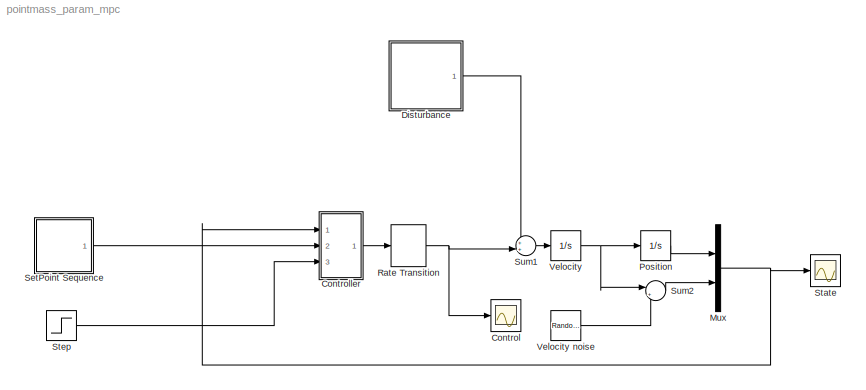
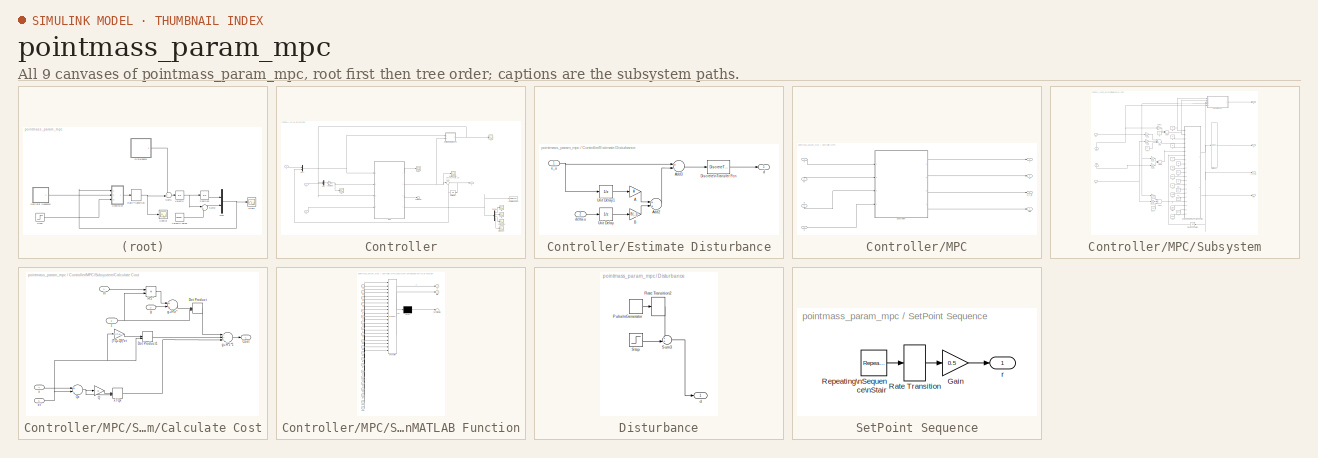
[diagram: thumbnail index - all 9 canvases of the model, root first then tree order]
MODEL pointmass_param_mpc
KIND model
BLOCK [Scope] Control
  DataFormat = StructureWithTime
  Floating = off
  NumInputPorts = 1
  Ports = [1]
  SID = 8
  SampleTime = 0
  SaveName = ScopeData1
  ShowLegends = off
  TimeRange = 240
  YMax = 0.35
  YMin = -0.4
BLOCK [SubSystem] Controller
  Ports = [3, 1]
  RequestExecContextInheritance = off
  SID = 410
  SystemSampleTime = dt
  TreatAsAtomicUnit = on
BLOCK [Demux] Controller/Demux
  DisplayOption = bar
  Ports = [1, 4]
  SID = 416
BLOCK [SubSystem] Controller/Estimate Disturbance
  Ports = [2, 1]
  RequestExecContextInheritance = off
  SID = 417
BLOCK [Gain] Controller/Estimate Disturbance/A
  Gain = A
  Multiplication = Matrix(K*u)
  OutDataTypeStr = Inherit: Inherit via internal rule
  ParamDataTypeStr = Inherit: Inherit via internal rule
  SID = 420
  SaturateOnIntegerOverflow = off
BLOCK [Sum] Controller/Estimate Disturbance/Add2
  InputSameDT = off
  OutDataTypeStr = Inherit: Inherit via internal rule
  Ports = [2, 1]
  SID = 421
  SaturateOnIntegerOverflow = off
BLOCK [Sum] Controller/Estimate Disturbance/Add3
  InputSameDT = off
  Inputs = +-
  OutDataTypeStr = Inherit: Inherit via internal rule
  Ports = [2, 1]
  SID = 422
  SaturateOnIntegerOverflow = off
BLOCK [Gain] Controller/Estimate Disturbance/B
  Gain = B(:,1)
  Multiplication = Matrix(K*u)
  OutDataTypeStr = Inherit: Inherit via internal rule
  ParamDataTypeStr = Inherit: Inherit via internal rule
  SID = 423
  SaturateOnIntegerOverflow = off
BLOCK [DiscreteTransferFcn] Controller/Estimate Disturbance/Discrete\nTransfer Fcn
  Denominator = [1 -0.5]
  InputPortMap = u0
  Numerator = [0.5]
  Ports = [1, 1]
  SID = 424
BLOCK [UnitDelay] Controller/Estimate Disturbance/Unit Delay
  InputProcessing = Elements as channels (sample based)
  SID = 425
  SampleTime = -1
BLOCK [UnitDelay] Controller/Estimate Disturbance/Unit Delay1
  InputProcessing = Elements as channels (sample based)
  SID = 426
  SampleTime = -1
BLOCK [Outport] Controller/Estimate Disturbance/d
  IconDisplay = Port number
  SID = 427
BLOCK [Inport] Controller/Estimate Disturbance/delta-u
  IconDisplay = Port number
  Port = 2
  SID = 419
BLOCK [Inport] Controller/Estimate Disturbance/x_u
  IconDisplay = Port number
  SID = 418
BLOCK [SubSystem] Controller/MPC
  Ports = [4, 4]
  RequestExecContextInheritance = off
  SID = 429
  TreatAsAtomicUnit = on
BLOCK [Outport] Controller/MPC/J
  IconDisplay = Port number
  SID = 483
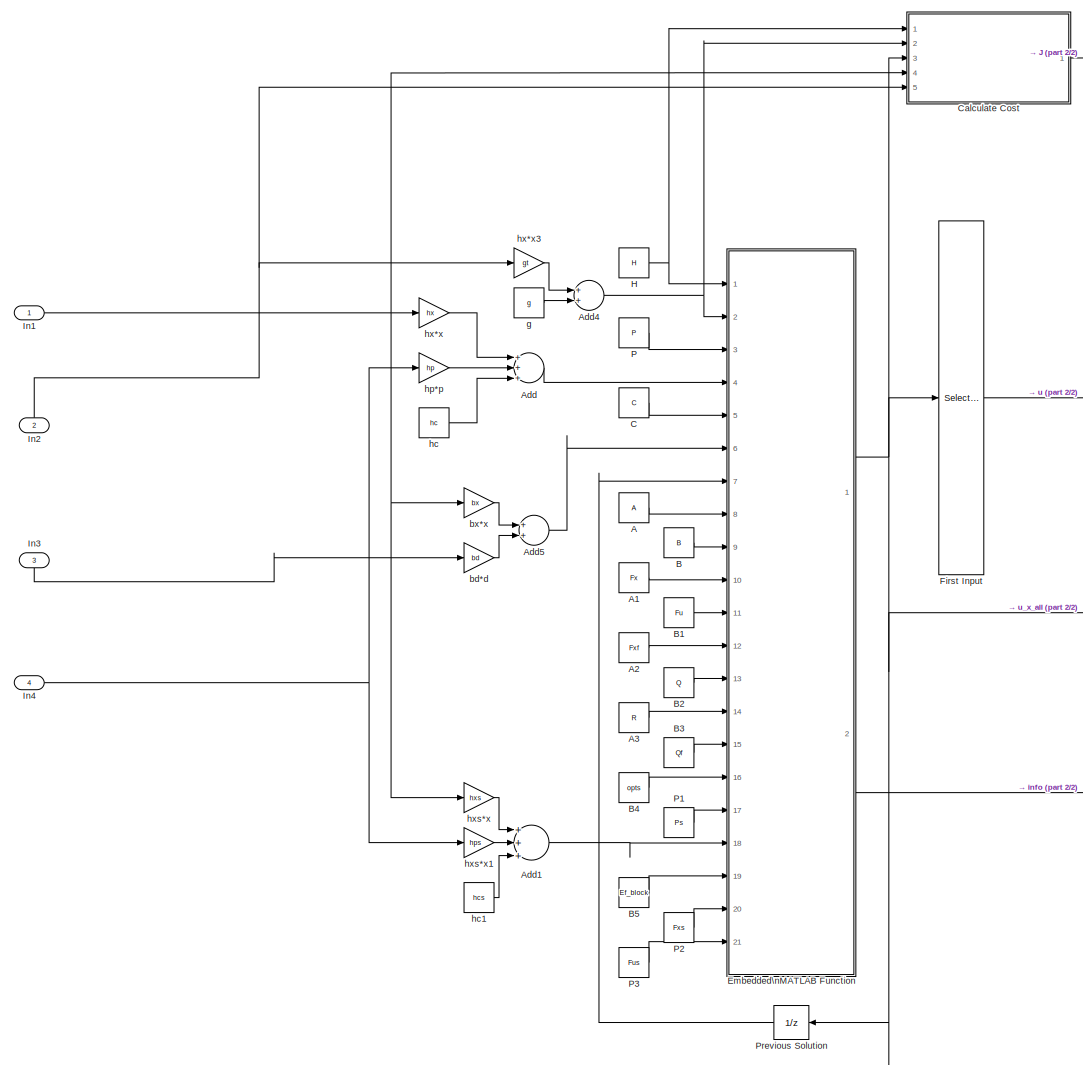
[diagram: Controller/MPC/Subsystem - part 1/2, most of the canvas]
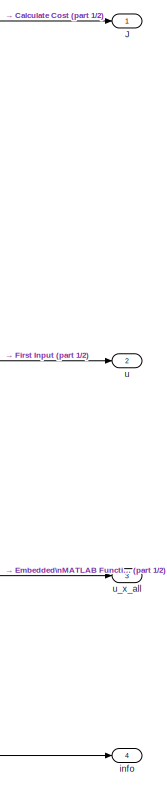
[diagram: Controller/MPC/Subsystem - part 2/2, middle right region]
BLOCK [SubSystem] Controller/MPC/Subsystem
  Ports = [4, 4]
  RequestExecContextInheritance = off
  SID = 498
  SystemSampleTime = dt
  TreatAsAtomicUnit = on
BLOCK [Constant] Controller/MPC/Subsystem/A
  SID = 434
  Value = A
BLOCK [Constant] Controller/MPC/Subsystem/A1
  SID = 435
  Value = Fx
BLOCK [Constant] Controller/MPC/Subsystem/A2
  SID = 436
  Value = Fxf
BLOCK [Constant] Controller/MPC/Subsystem/A3
  SID = 437
  Value = R
BLOCK [Sum] Controller/MPC/Subsystem/Add
  InputSameDT = off
  Inputs = +++
  OutDataTypeStr = Inherit: Inherit via internal rule
  Ports = [3, 1]
  SID = 438
  SaturateOnIntegerOverflow = off
BLOCK [Sum] Controller/MPC/Subsystem/Add1
  InputSameDT = off
  Inputs = +++
  OutDataTypeStr = Inherit: Inherit via internal rule
  Ports = [3, 1]
  SID = 439
  SaturateOnIntegerOverflow = off
BLOCK [Sum] Controller/MPC/Subsystem/Add4
  InputSameDT = off
  OutDataTypeStr = Inherit: Inherit via internal rule
  Ports = [2, 1]
  SID = 440
  SaturateOnIntegerOverflow = off
BLOCK [Sum] Controller/MPC/Subsystem/Add5
  InputSameDT = off
  OutDataTypeStr = Inherit: Inherit via internal rule
  Ports = [2, 1]
  SID = 441
  SaturateOnIntegerOverflow = off
BLOCK [Constant] Controller/MPC/Subsystem/B
  SID = 442
  Value = B
BLOCK [Constant] Controller/MPC/Subsystem/B1
  SID = 443
  Value = Fu
BLOCK [Constant] Controller/MPC/Subsystem/B2
  SID = 444
  Value = Q
BLOCK [Constant] Controller/MPC/Subsystem/B3
  SID = 445
  Value = Qf
BLOCK [Constant] Controller/MPC/Subsystem/B4
  SID = 446
  Value = opts
BLOCK [Constant] Controller/MPC/Subsystem/B5
  SID = 447
  Value = Ef_block
BLOCK [Constant] Controller/MPC/Subsystem/C
  SID = 448
  Value = C
BLOCK [SubSystem] Controller/MPC/Subsystem/Calculate Cost
  Ports = [5, 1]
  RequestExecContextInheritance = off
  SID = 449
BLOCK [Gain] Controller/MPC/Subsystem/Calculate Cost/(TQ+Qf)*xt
  Gain = Q*(T-1)+Qf
  Multiplication = Matrix(K*u)
  OutDataTypeStr = Inherit: Inherit via internal rule
  ParamDataTypeStr = Inherit: Inherit via internal rule
  SID = 455
  SaturateOnIntegerOverflow = off
BLOCK [Outport] Controller/MPC/Subsystem/Calculate Cost/Cost
  IconDisplay = Port number
  SID = 464
BLOCK [DotProduct] Controller/MPC/Subsystem/Calculate Cost/Dot Product
  OutDataTypeStr = Inherit: Inherit via internal rule
  SID = 456
BLOCK [DotProduct] Controller/MPC/Subsystem/Calculate Cost/Dot Product1
  OutDataTypeStr = Inherit: Inherit via internal rule
  SID = 457
BLOCK [Inport] Controller/MPC/Subsystem/Calculate Cost/H
  IconDisplay = Port number
  SID = 450
BLOCK [Product] Controller/MPC/Subsystem/Calculate Cost/H*z*
  InputSameDT = off
  Multiplication = Matrix(*)
  OutDataTypeStr = Inherit: Inherit via internal rule
  Ports = [2, 1]
  SID = 458
  SaturateOnIntegerOverflow = off
BLOCK [Gain] Controller/MPC/Subsystem/Calculate Cost/Q
  Gain = Q
  Multiplication = Matrix(K*u)
  OutDataTypeStr = Inherit: Inherit via internal rule
  ParamDataTypeStr = Inherit: Inherit via internal rule
  SID = 459
  SaturateOnIntegerOverflow = off
BLOCK [Sum] Controller/MPC/Subsystem/Calculate Cost/Qx
  InputSameDT = off
  Inputs = +-
  OutDataTypeStr = Inherit: Inherit via internal rule
  Ports = [2, 1]
  SID = 460
  SaturateOnIntegerOverflow = off
BLOCK [Inport] Controller/MPC/Subsystem/Calculate Cost/g
  IconDisplay = Port number
  Port = 2
  SID = 451
BLOCK [Sum] Controller/MPC/Subsystem/Calculate Cost/g+H*z*
  InputSameDT = off
  OutDataTypeStr = Inherit: Inherit via internal rule
  Ports = [2, 1]
  SID = 461
  SaturateOnIntegerOverflow = off
BLOCK [Sum] Controller/MPC/Subsystem/Calculate Cost/g+H*z*1
  InputSameDT = off
  Inputs = +++
  OutDataTypeStr = Inherit: Inherit via internal rule
  Ports = [3, 1]
  SID = 462
  SaturateOnIntegerOverflow = off
BLOCK [Inport] Controller/MPC/Subsystem/Calculate Cost/x
  IconDisplay = Port number
  Port = 4
  SID = 453
BLOCK [DotProduct] Controller/MPC/Subsystem/Calculate Cost/xTQx
  OutDataTypeStr = Inherit: Inherit via internal rule
  SID = 463
BLOCK [Inport] Controller/MPC/Subsystem/Calculate Cost/xt
  IconDisplay = Port number
  Port = 5
  SID = 454
BLOCK [Inport] Controller/MPC/Subsystem/Calculate Cost/z
  IconDisplay = Port number
  Port = 3
  SID = 452
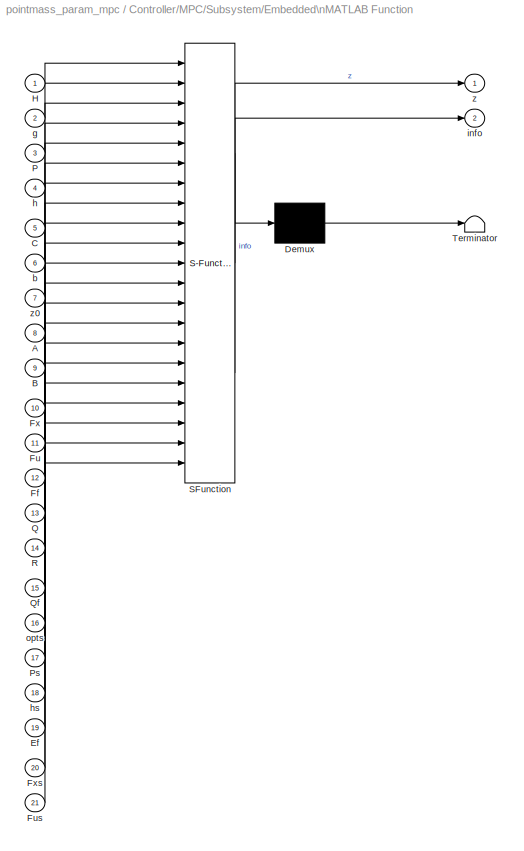
BLOCK [SubSystem] Controller/MPC/Subsystem/Embedded\nMATLAB Function
  ErrorFcn = Stateflow.Translate.translate
  PermitHierarchicalResolution = ExplicitOnly
  Ports = [21, 2]
  RTWFileNameOpts = Use subsystem name
  RequestExecContextInheritance = off
  SFBlockType = MATLAB Function
  SID = 465
  TreatAsAtomicUnit = on
BLOCK [Demux] Controller/MPC/Subsystem/Embedded\nMATLAB Function/ Demux 
  Outputs = 1
  Ports = [1, 1]
  SID = 465::40
BLOCK [S-Function] Controller/MPC/Subsystem/Embedded\nMATLAB Function/ SFunction 
  EnableBusSupport = on
  FunctionName = sf_sfun
  PortCounts = [21 3]
  Ports = [21, 3]
  SID = 465::39
  Tag = Stateflow S-Function pointmass_param_mpc 1
BLOCK [Terminator] Controller/MPC/Subsystem/Embedded\nMATLAB Function/ Terminator 
  SID = 465::41
BLOCK [Inport] Controller/MPC/Subsystem/Embedded\nMATLAB Function/A
  IconDisplay = Port number
  Port = 8
  SID = 465::17
BLOCK [Inport] Controller/MPC/Subsystem/Embedded\nMATLAB Function/B
  IconDisplay = Port number
  Port = 9
  SID = 465::22
BLOCK [Inport] Controller/MPC/Subsystem/Embedded\nMATLAB Function/C
  IconDisplay = Port number
  Port = 5
  SID = 465::13
BLOCK [Inport] Controller/MPC/Subsystem/Embedded\nMATLAB Function/Ef
  IconDisplay = Port number
  Port = 19
  SID = 465::33
BLOCK [Inport] Controller/MPC/Subsystem/Embedded\nMATLAB Function/Ff
  IconDisplay = Port number
  Port = 12
  SID = 465::25
BLOCK [Inport] Controller/MPC/Subsystem/Embedded\nMATLAB Function/Fu
  IconDisplay = Port number
  Port = 11
  SID = 465::24
BLOCK [Inport] Controller/MPC/Subsystem/Embedded\nMATLAB Function/Fus
  IconDisplay = Port number
  Port = 21
  SID = 465::38
BLOCK [Inport] Controller/MPC/Subsystem/Embedded\nMATLAB Function/Fx
  IconDisplay = Port number
  Port = 10
  SID = 465::23
BLOCK [Inport] Controller/MPC/Subsystem/Embedded\nMATLAB Function/Fxs
  IconDisplay = Port number
  Port = 20
  SID = 465::34
BLOCK [Inport] Controller/MPC/Subsystem/Embedded\nMATLAB Function/H
  IconDisplay = Port number
  SID = 465::1
BLOCK [Inport] Controller/MPC/Subsystem/Embedded\nMATLAB Function/P
  IconDisplay = Port number
  Port = 3
  SID = 465::11
BLOCK [Inport] Controller/MPC/Subsystem/Embedded\nMATLAB Function/Ps
  IconDisplay = Port number
  Port = 17
  SID = 465::31
BLOCK [Inport] Controller/MPC/Subsystem/Embedded\nMATLAB Function/Q
  IconDisplay = Port number
  Port = 13
  SID = 465::26
BLOCK [Inport] Controller/MPC/Subsystem/Embedded\nMATLAB Function/Qf
  IconDisplay = Port number
  Port = 15
  SID = 465::28
BLOCK [Inport] Controller/MPC/Subsystem/Embedded\nMATLAB Function/R
  IconDisplay = Port number
  Port = 14
  SID = 465::27
BLOCK [Inport] Controller/MPC/Subsystem/Embedded\nMATLAB Function/b
  IconDisplay = Port number
  Port = 6
  SID = 465::14
BLOCK [Inport] Controller/MPC/Subsystem/Embedded\nMATLAB Function/g
  IconDisplay = Port number
  Port = 2
  SID = 465::10
BLOCK [Inport] Controller/MPC/Subsystem/Embedded\nMATLAB Function/h
  IconDisplay = Port number
  Port = 4
  SID = 465::12
BLOCK [Inport] Controller/MPC/Subsystem/Embedded\nMATLAB Function/hs
  IconDisplay = Port number
  Port = 18
  SID = 465::32
BLOCK [Outport] Controller/MPC/Subsystem/Embedded\nMATLAB Function/info
  IconDisplay = Port number
  Port = 2
  SID = 465::29
BLOCK [Inport] Controller/MPC/Subsystem/Embedded\nMATLAB Function/opts
  IconDisplay = Port number
  Port = 16
  SID = 465::30
BLOCK [Outport] Controller/MPC/Subsystem/Embedded\nMATLAB Function/z
  IconDisplay = Port number
  SID = 465::5
BLOCK [Inport] Controller/MPC/Subsystem/Embedded\nMATLAB Function/z0
  IconDisplay = Port number
  Port = 7
  SID = 465::15
BLOCK [Selector] Controller/MPC/Subsystem/First Input
  Indices = 1:size(B,2)
  InputPortWidth = size(H,1)
  Ports = [1, 1]
  SID = 466
BLOCK [Constant] Controller/MPC/Subsystem/H
  SID = 467
  Value = H
BLOCK [Inport] Controller/MPC/Subsystem/In1
  IconDisplay = Port number
  SID = 499
BLOCK [Inport] Controller/MPC/Subsystem/In2
  IconDisplay = Port number
  Port = 2
  SID = 500
BLOCK [Inport] Controller/MPC/Subsystem/In3
  IconDisplay = Port number
  Port = 3
  SID = 501
BLOCK [Inport] Controller/MPC/Subsystem/In4
  IconDisplay = Port number
  Port = 4
  SID = 502
BLOCK [Outport] Controller/MPC/Subsystem/J
  IconDisplay = Port number
  SID = 503
BLOCK [Constant] Controller/MPC/Subsystem/P
  SID = 468
  Value = P
BLOCK [Constant] Controller/MPC/Subsystem/P1
  SID = 469
  Value = Ps
BLOCK [Constant] Controller/MPC/Subsystem/P2
  SID = 470
  Value = Fxs
BLOCK [Constant] Controller/MPC/Subsystem/P3
  SID = 471
  Value = Fus
BLOCK [UnitDelay] Controller/MPC/Subsystem/Previous Solution
  SID = 472
  SampleTime = -1
BLOCK [Gain] Controller/MPC/Subsystem/bd*d
  Gain = bd
  Multiplication = Matrix(K*u)
  OutDataTypeStr = Inherit: Inherit via internal rule
  ParamDataTypeStr = Inherit: Inherit via internal rule
  SID = 473
  SaturateOnIntegerOverflow = off
BLOCK [Gain] Controller/MPC/Subsystem/bx*x
  Gain = bx
  Multiplication = Matrix(K*u)
  OutDataTypeStr = Inherit: Inherit via internal rule
  ParamDataTypeStr = Inherit: Inherit via internal rule
  SID = 474
  SaturateOnIntegerOverflow = off
BLOCK [Constant] Controller/MPC/Subsystem/g
  SID = 475
  Value = g
BLOCK [Constant] Controller/MPC/Subsystem/hc
  SID = 476
  Value = hc
BLOCK [Constant] Controller/MPC/Subsystem/hc1
  SID = 477
  Value = hcs
BLOCK [Gain] Controller/MPC/Subsystem/hp*p
  Gain = hp
  Multiplication = Matrix(K*u)
  OutDataTypeStr = Inherit: Inherit via internal rule
  ParamDataTypeStr = Inherit: Inherit via internal rule
  SID = 478
  SaturateOnIntegerOverflow = off
BLOCK [Gain] Controller/MPC/Subsystem/hx*x
  Gain = hx
  Multiplication = Matrix(K*u)
  OutDataTypeStr = Inherit: Inherit via internal rule
  ParamDataTypeStr = Inherit: Inherit via internal rule
  SID = 479
  SaturateOnIntegerOverflow = off
BLOCK [Gain] Controller/MPC/Subsystem/hx*x3
  Gain = gt
  Multiplication = Matrix(K*u)
  OutDataTypeStr = Inherit: Inherit via internal rule
  ParamDataTypeStr = Inherit: Inherit via internal rule
  SID = 480
  SaturateOnIntegerOverflow = off
BLOCK [Gain] Controller/MPC/Subsystem/hxs*x
  Gain = hxs
  Multiplication = Matrix(K*u)
  OutDataTypeStr = Inherit: Inherit via internal rule
  ParamDataTypeStr = Inherit: Inherit via internal rule
  SID = 481
  SaturateOnIntegerOverflow = off
BLOCK [Gain] Controller/MPC/Subsystem/hxs*x1
  Gain = hps
  Multiplication = Matrix(K*u)
  OutDataTypeStr = Inherit: Inherit via internal rule
  ParamDataTypeStr = Inherit: Inherit via internal rule
  SID = 482
  SaturateOnIntegerOverflow = off
BLOCK [Outport] Controller/MPC/Subsystem/info
  IconDisplay = Port number
  Port = 4
  SID = 505
BLOCK [Outport] Controller/MPC/Subsystem/u
  IconDisplay = Port number
  Port = 2
  SID = 504
BLOCK [Outport] Controller/MPC/Subsystem/u_x_all
  IconDisplay = Port number
  Port = 3
  SID = 506
BLOCK [Inport] Controller/MPC/d
  IconDisplay = Port number
  Port = 3
  SID = 432
BLOCK [Outport] Controller/MPC/info
  IconDisplay = Port number
  Port = 4
  SID = 485
BLOCK [Inport] Controller/MPC/p
  IconDisplay = Port number
  Port = 4
  SID = 433
BLOCK [Outport] Controller/MPC/u
  IconDisplay = Port number
  Port = 2
  SID = 484
BLOCK [Outport] Controller/MPC/u_x_all
  IconDisplay = Port number
  Port = 3
  SID = 507
BLOCK [Inport] Controller/MPC/x
  IconDisplay = Port number
  SID = 430
BLOCK [Inport] Controller/MPC/xt
  IconDisplay = Port number
  Port = 2
  SID = 431
BLOCK [Mux] Controller/Mux
  DisplayOption = bar
  Inputs = 2
  Ports = [2, 1]
  SID = 428
BLOCK [Mux] Controller/Mux1
  DisplayOption = bar
  Inputs = 2
  Ports = [2, 1]
  SID = 89
BLOCK [Sum] Controller/Sum
  IconShape = round
  InputSameDT = off
  Inputs = |++
  OutDataTypeStr = Inherit: Inherit via internal rule
  Ports = [2, 1]
  SID = 87
  SaturateOnIntegerOverflow = off
BLOCK [Terminator] Controller/Terminator
  SID = 508
BLOCK [ToWorkspace] Controller/To Workspace
  MaxDataPoints = inf
  Ports = [1]
  SID = 486
  SampleTime = -1
  VariableName = info_out1
BLOCK [UnitDelay] Controller/Unit Delay
  SID = 88
  SampleTime = -1
BLOCK [Gain] Controller/calc target
  Gain = pinv([eye(3)-A;1 0 0])
  Multiplication = Matrix(K*u)
  OutDataTypeStr = Inherit: Inherit via internal rule
  ParamDataTypeStr = Inherit: Inherit via internal rule
  SID = 487
  SaturateOnIntegerOverflow = off
BLOCK [Scope] Controller/cost
  DataFormat = StructureWithTime
  Floating = off
  NumInputPorts = 1
  Ports = [1]
  SID = 488
  SampleTime = 0
  SaveName = ScopeData10
  ShowLegends = off
  YMax = 2.5
  YMin = -0.25
  ZoomMode = yonly
BLOCK [Scope] Controller/d
  DataFormat = StructureWithTime
  Floating = off
  NumInputPorts = 1
  Ports = [1]
  SID = 489
  SampleTime = 0
  SaveName = ScopeData11
  ShowLegends = off
  YMax = 0.002
  YMin = -0.00025
  ZoomMode = yonly
BLOCK [Scope] Controller/delta-Control
  DataFormat = StructureWithTime
  Floating = off
  NumInputPorts = 1
  Ports = [1]
  SID = 307
  SampleTime = 0
  SaveName = ScopeData2
  ShowLegends = off
  TimeRange = 240
  YMax = 0.35
  YMin = -0.4
BLOCK [Scope] Controller/iterCount
  DataFormat = StructureWithTime
  Floating = off
  NumInputPorts = 1
  Ports = [1]
  SID = 490
  SampleTime = 0
  SaveName = ScopeData12
  ShowLegends = off
  TimeRange = 200
  YMax = 25
  YMin = 0
  ZoomMode = xonly
BLOCK [Inport] Controller/p
  IconDisplay = Port number
  Port = 3
  SID = 413
BLOCK [Inport] Controller/r_t
  IconDisplay = Port number
  Port = 2
  SID = 411
BLOCK [Scope] Controller/rd
  DataFormat = StructureWithTime
  Floating = off
  NumInputPorts = 1
  Ports = [1]
  SID = 491
  SampleTime = 0
  SaveName = ScopeData13
  ShowLegends = off
  YMax = 13
  YMin = 0
BLOCK [Scope] Controller/rp
  DataFormat = StructureWithTime
  Floating = off
  NumInputPorts = 1
  Ports = [1]
  SID = 492
  SampleTime = 0
  SaveName = ScopeData14
  ShowLegends = off
  YMax = 2.75e-08
  YMin = 1.65436e-24
BLOCK [Scope] Controller/solChoice
  DataFormat = StructureWithTime
  Floating = off
  NumInputPorts = 1
  Ports = [1]
  SID = 493
  SampleTime = 0
  SaveName = ScopeData15
  ShowLegends = off
  YMax = 1.05
  YMin = 0.95
  ZoomMode = xonly
BLOCK [Outport] Controller/u
  IconDisplay = Port number
  SID = 414
BLOCK [Inport] Controller/x
  IconDisplay = Port number
  SID = 497
BLOCK [Scope] Controller/xt
  DataFormat = StructureWithTime
  Floating = off
  NumInputPorts = 1
  Ports = [1]
  SID = 494
  SampleTime = 0
  SaveName = ScopeData16
  ShowLegends = off
  YMax = 2.5
  YMin = -0.25
  ZoomMode = yonly
BLOCK [SubSystem] Disturbance
  Ports = [0, 1]
  RequestExecContextInheritance = off
  SID = 394
BLOCK [DiscretePulseGenerator] Disturbance/Pulse\nGenerator
  Amplitude = 0.1
  Period = 200
  PhaseDelay = 100
  Ports = [0, 1]
  PulseType = Time based
  SID = 390
BLOCK [RateTransition] Disturbance/Rate Transition2
  SID = 391
BLOCK [Step] Disturbance/Step
  After = 0.01
  SID = 355
  SampleTime = 0
  Time = 100
BLOCK [Sum] Disturbance/Sum3
  IconShape = round
  InputSameDT = off
  Inputs = ++|
  OutDataTypeStr = Inherit: Inherit via internal rule
  Ports = [2, 1]
  SID = 388
  SaturateOnIntegerOverflow = off
BLOCK [Outport] Disturbance/d
  IconDisplay = Port number
  SID = 395
BLOCK [Mux] Mux
  DisplayOption = bar
  Inputs = 2
  Ports = [2, 1]
  SID = 3
BLOCK [Integrator] Position
  Ports = [1, 1]
  SID = 2
BLOCK [RateTransition] Rate Transition
  SID = 360
BLOCK [SubSystem] SetPoint Sequence
  Ports = [0, 1]
  RequestExecContextInheritance = off
  SID = 40
BLOCK [Gain] SetPoint Sequence/Gain
  Gain = 0.5
  OutDataTypeStr = Inherit: Inherit via internal rule
  ParamDataTypeStr = Inherit: Inherit via internal rule
  SID = 11
  SaturateOnIntegerOverflow = off
BLOCK [RateTransition] SetPoint Sequence/Rate Transition
  SID = 36
BLOCK [Reference] SetPoint Sequence/Repeating\nSequence\nStair  REF=simulink/Sources/Repeating\nSequence\nStair
  ConRadixGroup = Best Precision: Vector-wise
  LockScale = off
  OutDataType = double
  OutDataTypeStr = double
  OutMax = []
  OutMin = []
  OutScaling = 2^-12
  OutValues = [1 0 2 0 3 0 4 0 5 0 6 0].'
  OutputDataTypeScalingMode = Specify via dialog
  Ports = [0, 1]
  SID = 9
  SourceBlock = simulink/Sources/Repeating\nSequence\nStair
  SourceType = Repeating Sequence Stair
  tsamp = 20
BLOCK [Outport] SetPoint Sequence/r
  IconDisplay = Port number
  SID = 41
BLOCK [Scope] State
  DataFormat = StructureWithTime
  Floating = off
  NumInputPorts = 1
  Ports = [1]
  SID = 7
  SampleTime = 0
  ShowLegends = off
  TimeRange = 200
  YMax = 14
  YMin = -1
  ZoomMode = yonly
BLOCK [Step] Step
  After = 0
  Before = 0.15
  SID = 399
  SampleTime = 0
  Time = 100
BLOCK [Sum] Sum1
  IconShape = round
  InputSameDT = off
  Inputs = ++|
  OutDataTypeStr = Inherit: Inherit via internal rule
  Ports = [2, 1]
  SID = 325
  SaturateOnIntegerOverflow = off
BLOCK [Sum] Sum2
  IconShape = round
  InputSameDT = off
  Inputs = |++
  OutDataTypeStr = Inherit: Inherit via internal rule
  Ports = [2, 1]
  SID = 357
  SaturateOnIntegerOverflow = off
BLOCK [Integrator] Velocity
  Ports = [1, 1]
  SID = 1
BLOCK [RandomNumber] Velocity noise
  SID = 358
  SampleTime = dt
  Variance = 0.000000001
ANNOTATION Controller: u(k)=u(k-1)+delta_u(k)
LINE Controller/Demux:1 -> Controller/rp:1
LINE Controller/Demux:2 -> Controller/rd:1
LINE Controller/Demux:3 -> Controller/solChoice:1
LINE Controller/Demux:4 -> Controller/iterCount:1
LINE Controller/Estimate Disturbance/A:1 -> Controller/Estimate Disturbance/Add2:1
LINE Controller/Estimate Disturbance/Add2:1 -> Controller/Estimate Disturbance/Add3:2
LINE Controller/Estimate Disturbance/Add3:1 -> Controller/Estimate Disturbance/Discrete\nTransfer Fcn:1
LINE Controller/Estimate Disturbance/B:1 -> Controller/Estimate Disturbance/Add2:2
LINE Controller/Estimate Disturbance/Discrete\nTransfer Fcn:1 -> Controller/Estimate Disturbance/d:1
LINE Controller/Estimate Disturbance/Unit Delay1:1 -> Controller/Estimate Disturbance/A:1
LINE Controller/Estimate Disturbance/Unit Delay:1 -> Controller/Estimate Disturbance/B:1
LINE Controller/Estimate Disturbance/delta-u:1 -> Controller/Estimate Disturbance/Unit Delay:1
NET Controller/Estimate Disturbance/x_u:1 -> Controller/Estimate Disturbance/Add3:1, Controller/Estimate Disturbance/Unit Delay1:1
NET Controller/Estimate Disturbance:1 -> Controller/MPC:3, Controller/Mux:1, Controller/d:1
LINE Controller/MPC/Subsystem/A1:1 -> Controller/MPC/Subsystem/Embedded\nMATLAB Function:10
LINE Controller/MPC/Subsystem/A2:1 -> Controller/MPC/Subsystem/Embedded\nMATLAB Function:12
LINE Controller/MPC/Subsystem/A3:1 -> Controller/MPC/Subsystem/Embedded\nMATLAB Function:14
LINE Controller/MPC/Subsystem/A:1 -> Controller/MPC/Subsystem/Embedded\nMATLAB Function:8
LINE Controller/MPC/Subsystem/Add1:1 -> Controller/MPC/Subsystem/Embedded\nMATLAB Function:18
NET Controller/MPC/Subsystem/Add4:1 -> Controller/MPC/Subsystem/Calculate Cost:2, Controller/MPC/Subsystem/Embedded\nMATLAB Function:2
LINE Controller/MPC/Subsystem/Add5:1 -> Controller/MPC/Subsystem/Embedded\nMATLAB Function:6
LINE Controller/MPC/Subsystem/Add:1 -> Controller/MPC/Subsystem/Embedded\nMATLAB Function:4
LINE Controller/MPC/Subsystem/B1:1 -> Controller/MPC/Subsystem/Embedded\nMATLAB Function:11
LINE Controller/MPC/Subsystem/B2:1 -> Controller/MPC/Subsystem/Embedded\nMATLAB Function:13
LINE Controller/MPC/Subsystem/B3:1 -> Controller/MPC/Subsystem/Embedded\nMATLAB Function:15
LINE Controller/MPC/Subsystem/B4:1 -> Controller/MPC/Subsystem/Embedded\nMATLAB Function:16
LINE Controller/MPC/Subsystem/B5:1 -> Controller/MPC/Subsystem/Embedded\nMATLAB Function:19
LINE Controller/MPC/Subsystem/B:1 -> Controller/MPC/Subsystem/Embedded\nMATLAB Function:9
LINE Controller/MPC/Subsystem/C:1 -> Controller/MPC/Subsystem/Embedded\nMATLAB Function:5
LINE Controller/MPC/Subsystem/Calculate Cost/(TQ+Qf)*xt:1 -> Controller/MPC/Subsystem/Calculate Cost/Dot Product1:1
LINE Controller/MPC/Subsystem/Calculate Cost/Dot Product1:1 -> Controller/MPC/Subsystem/Calculate Cost/g+H*z*1:2
LINE Controller/MPC/Subsystem/Calculate Cost/Dot Product:1 -> Controller/MPC/Subsystem/Calculate Cost/g+H*z*1:1
LINE Controller/MPC/Subsystem/Calculate Cost/H*z*:1 -> Controller/MPC/Subsystem/Calculate Cost/g+H*z*:1
LINE Controller/MPC/Subsystem/Calculate Cost/H:1 -> Controller/MPC/Subsystem/Calculate Cost/H*z*:1
LINE Controller/MPC/Subsystem/Calculate Cost/Q:1 -> Controller/MPC/Subsystem/Calculate Cost/xTQx:1
NET Controller/MPC/Subsystem/Calculate Cost/Qx:1 -> Controller/MPC/Subsystem/Calculate Cost/Q:1, Controller/MPC/Subsystem/Calculate Cost/xTQx:2
LINE Controller/MPC/Subsystem/Calculate Cost/g+H*z*1:1 -> Controller/MPC/Subsystem/Calculate Cost/Cost:1
LINE Controller/MPC/Subsystem/Calculate Cost/g+H*z*:1 -> Controller/MPC/Subsystem/Calculate Cost/Dot Product:1
LINE Controller/MPC/Subsystem/Calculate Cost/g:1 -> Controller/MPC/Subsystem/Calculate Cost/g+H*z*:2
LINE Controller/MPC/Subsystem/Calculate Cost/x:1 -> Controller/MPC/Subsystem/Calculate Cost/Qx:1
LINE Controller/MPC/Subsystem/Calculate Cost/xTQx:1 -> Controller/MPC/Subsystem/Calculate Cost/g+H*z*1:3
NET Controller/MPC/Subsystem/Calculate Cost/xt:1 -> Controller/MPC/Subsystem/Calculate Cost/(TQ+Qf)*xt:1, Controller/MPC/Subsystem/Calculate Cost/Dot Product1:2, Controller/MPC/Subsystem/Calculate Cost/Qx:2
NET Controller/MPC/Subsystem/Calculate Cost/z:1 -> Controller/MPC/Subsystem/Calculate Cost/Dot Product:2, Controller/MPC/Subsystem/Calculate Cost/H*z*:2
LINE Controller/MPC/Subsystem/Calculate Cost:1 -> Controller/MPC/Subsystem/J:1
LINE Controller/MPC/Subsystem/Embedded\nMATLAB Function/ Demux :1 -> Controller/MPC/Subsystem/Embedded\nMATLAB Function/ Terminator :1
LINE Controller/MPC/Subsystem/Embedded\nMATLAB Function/ SFunction :1 -> Controller/MPC/Subsystem/Embedded\nMATLAB Function/ Demux :1
LINE Controller/MPC/Subsystem/Embedded\nMATLAB Function/ SFunction :2 -> Controller/MPC/Subsystem/Embedded\nMATLAB Function/z:1
LINE Controller/MPC/Subsystem/Embedded\nMATLAB Function/ SFunction :3 -> Controller/MPC/Subsystem/Embedded\nMATLAB Function/info:1
LINE Controller/MPC/Subsystem/Embedded\nMATLAB Function/A:1 -> Controller/MPC/Subsystem/Embedded\nMATLAB Function/ SFunction :8
LINE Controller/MPC/Subsystem/Embedded\nMATLAB Function/B:1 -> Controller/MPC/Subsystem/Embedded\nMATLAB Function/ SFunction :9
LINE Controller/MPC/Subsystem/Embedded\nMATLAB Function/C:1 -> Controller/MPC/Subsystem/Embedded\nMATLAB Function/ SFunction :5
LINE Controller/MPC/Subsystem/Embedded\nMATLAB Function/Ef:1 -> Controller/MPC/Subsystem/Embedded\nMATLAB Function/ SFunction :19
LINE Controller/MPC/Subsystem/Embedded\nMATLAB Function/Ff:1 -> Controller/MPC/Subsystem/Embedded\nMATLAB Function/ SFunction :12
LINE Controller/MPC/Subsystem/Embedded\nMATLAB Function/Fu:1 -> Controller/MPC/Subsystem/Embedded\nMATLAB Function/ SFunction :11
LINE Controller/MPC/Subsystem/Embedded\nMATLAB Function/Fus:1 -> Controller/MPC/Subsystem/Embedded\nMATLAB Function/ SFunction :21
LINE Controller/MPC/Subsystem/Embedded\nMATLAB Function/Fx:1 -> Controller/MPC/Subsystem/Embedded\nMATLAB Function/ SFunction :10
LINE Controller/MPC/Subsystem/Embedded\nMATLAB Function/Fxs:1 -> Controller/MPC/Subsystem/Embedded\nMATLAB Function/ SFunction :20
LINE Controller/MPC/Subsystem/Embedded\nMATLAB Function/H:1 -> Controller/MPC/Subsystem/Embedded\nMATLAB Function/ SFunction :1
LINE Controller/MPC/Subsystem/Embedded\nMATLAB Function/P:1 -> Controller/MPC/Subsystem/Embedded\nMATLAB Function/ SFunction :3
LINE Controller/MPC/Subsystem/Embedded\nMATLAB Function/Ps:1 -> Controller/MPC/Subsystem/Embedded\nMATLAB Function/ SFunction :17
LINE Controller/MPC/Subsystem/Embedded\nMATLAB Function/Q:1 -> Controller/MPC/Subsystem/Embedded\nMATLAB Function/ SFunction :13
LINE Controller/MPC/Subsystem/Embedded\nMATLAB Function/Qf:1 -> Controller/MPC/Subsystem/Embedded\nMATLAB Function/ SFunction :15
LINE Controller/MPC/Subsystem/Embedded\nMATLAB Function/R:1 -> Controller/MPC/Subsystem/Embedded\nMATLAB Function/ SFunction :14
LINE Controller/MPC/Subsystem/Embedded\nMATLAB Function/b:1 -> Controller/MPC/Subsystem/Embedded\nMATLAB Function/ SFunction :6
LINE Controller/MPC/Subsystem/Embedded\nMATLAB Function/g:1 -> Controller/MPC/Subsystem/Embedded\nMATLAB Function/ SFunction :2
LINE Controller/MPC/Subsystem/Embedded\nMATLAB Function/h:1 -> Controller/MPC/Subsystem/Embedded\nMATLAB Function/ SFunction :4
LINE Controller/MPC/Subsystem/Embedded\nMATLAB Function/hs:1 -> Controller/MPC/Subsystem/Embedded\nMATLAB Function/ SFunction :18
LINE Controller/MPC/Subsystem/Embedded\nMATLAB Function/opts:1 -> Controller/MPC/Subsystem/Embedded\nMATLAB Function/ SFunction :16
LINE Controller/MPC/Subsystem/Embedded\nMATLAB Function/z0:1 -> Controller/MPC/Subsystem/Embedded\nMATLAB Function/ SFunction :7
NET Controller/MPC/Subsystem/Embedded\nMATLAB Function:1 -> Controller/MPC/Subsystem/Calculate Cost:3, Controller/MPC/Subsystem/First Input:1, Controller/MPC/Subsystem/Previous Solution:1, Controller/MPC/Subsystem/u_x_all:1
LINE Controller/MPC/Subsystem/Embedded\nMATLAB Function:2 -> Controller/MPC/Subsystem/info:1
LINE Controller/MPC/Subsystem/First Input:1 -> Controller/MPC/Subsystem/u:1
NET Controller/MPC/Subsystem/H:1 -> Controller/MPC/Subsystem/Calculate Cost:1, Controller/MPC/Subsystem/Embedded\nMATLAB Function:1
NET Controller/MPC/Subsystem/In1:1 -> Controller/MPC/Subsystem/Calculate Cost:4, Controller/MPC/Subsystem/bx*x:1, Controller/MPC/Subsystem/hx*x:1, Controller/MPC/Subsystem/hxs*x:1
NET Controller/MPC/Subsystem/In2:1 -> Controller/MPC/Subsystem/Calculate Cost:5, Controller/MPC/Subsystem/hx*x3:1
LINE Controller/MPC/Subsystem/In3:1 -> Controller/MPC/Subsystem/bd*d:1
NET Controller/MPC/Subsystem/In4:1 -> Controller/MPC/Subsystem/hp*p:1, Controller/MPC/Subsystem/hxs*x1:1
LINE Controller/MPC/Subsystem/P1:1 -> Controller/MPC/Subsystem/Embedded\nMATLAB Function:17
LINE Controller/MPC/Subsystem/P2:1 -> Controller/MPC/Subsystem/Embedded\nMATLAB Function:20
LINE Controller/MPC/Subsystem/P3:1 -> Controller/MPC/Subsystem/Embedded\nMATLAB Function:21
LINE Controller/MPC/Subsystem/P:1 -> Controller/MPC/Subsystem/Embedded\nMATLAB Function:3
LINE Controller/MPC/Subsystem/Previous Solution:1 -> Controller/MPC/Subsystem/Embedded\nMATLAB Function:7
LINE Controller/MPC/Subsystem/bd*d:1 -> Controller/MPC/Subsystem/Add5:2
LINE Controller/MPC/Subsystem/bx*x:1 -> Controller/MPC/Subsystem/Add5:1
LINE Controller/MPC/Subsystem/g:1 -> Controller/MPC/Subsystem/Add4:2
LINE Controller/MPC/Subsystem/hc1:1 -> Controller/MPC/Subsystem/Add1:3
LINE Controller/MPC/Subsystem/hc:1 -> Controller/MPC/Subsystem/Add:3
LINE Controller/MPC/Subsystem/hp*p:1 -> Controller/MPC/Subsystem/Add:2
LINE Controller/MPC/Subsystem/hx*x3:1 -> Controller/MPC/Subsystem/Add4:1
LINE Controller/MPC/Subsystem/hx*x:1 -> Controller/MPC/Subsystem/Add:1
LINE Controller/MPC/Subsystem/hxs*x1:1 -> Controller/MPC/Subsystem/Add1:2
LINE Controller/MPC/Subsystem/hxs*x:1 -> Controller/MPC/Subsystem/Add1:1
LINE Controller/MPC/Subsystem:1 -> Controller/MPC/J:1
LINE Controller/MPC/Subsystem:2 -> Controller/MPC/u:1
LINE Controller/MPC/Subsystem:3 -> Controller/MPC/u_x_all:1
LINE Controller/MPC/Subsystem:4 -> Controller/MPC/info:1
LINE Controller/MPC/d:1 -> Controller/MPC/Subsystem:3
LINE Controller/MPC/p:1 -> Controller/MPC/Subsystem:4
LINE Controller/MPC/x:1 -> Controller/MPC/Subsystem:1
LINE Controller/MPC/xt:1 -> Controller/MPC/Subsystem:2
LINE Controller/MPC:1 -> Controller/cost:1
NET Controller/MPC:2 -> Controller/Estimate Disturbance:2, Controller/Sum:1, Controller/delta-Control:1
LINE Controller/MPC:3 -> Controller/Terminator:1
NET Controller/MPC:4 -> Controller/Demux:1, Controller/To Workspace:1
NET Controller/Mux1:1 -> Controller/Estimate Disturbance:1, Controller/MPC:1
LINE Controller/Mux:1 -> Controller/calc target:1
NET Controller/Sum:1 -> Controller/Unit Delay:1, Controller/u:1
NET Controller/Unit Delay:1 -> Controller/Mux1:2, Controller/Sum:2
NET Controller/calc target:1 -> Controller/MPC:2, Controller/xt:1
LINE Controller/p:1 -> Controller/MPC:4
LINE Controller/r_t:1 -> Controller/Mux:2
LINE Controller/x:1 -> Controller/Mux1:1
LINE Controller:1 -> Rate Transition:1
LINE Disturbance/Pulse\nGenerator:1 -> Disturbance/Rate Transition2:1
LINE Disturbance/Rate Transition2:1 -> Disturbance/Sum3:1
LINE Disturbance/Step:1 -> Disturbance/Sum3:2
LINE Disturbance/Sum3:1 -> Disturbance/d:1
LINE Disturbance:1 -> Sum1:1
NET Mux:1 -> Controller:1, State:1
LINE Position:1 -> Mux:1
NET Rate Transition:1 -> Control:1, Sum1:2
LINE SetPoint Sequence/Gain:1 -> SetPoint Sequence/r:1
LINE SetPoint Sequence/Rate Transition:1 -> SetPoint Sequence/Gain:1
LINE SetPoint Sequence/Repeating\nSequence\nStair:1 -> SetPoint Sequence/Rate Transition:1
LINE SetPoint Sequence:1 -> Controller:2
LINE Step:1 -> Controller:3
LINE Sum1:1 -> Velocity:1
LINE Sum2:1 -> Mux:2
LINE Velocity noise:1 -> Sum2:2
NET Velocity:1 -> Position:1, Sum2:1
note: NET lines group one-source signal fan-out (src -> all destinations, sorted); 1:1 wires keep LINE
CHART Controller/MPC/Subsystem/Embedded\nMATLAB Function states=1 transitions=1
  STATE_LABEL 'eML_blk_kernel()'
